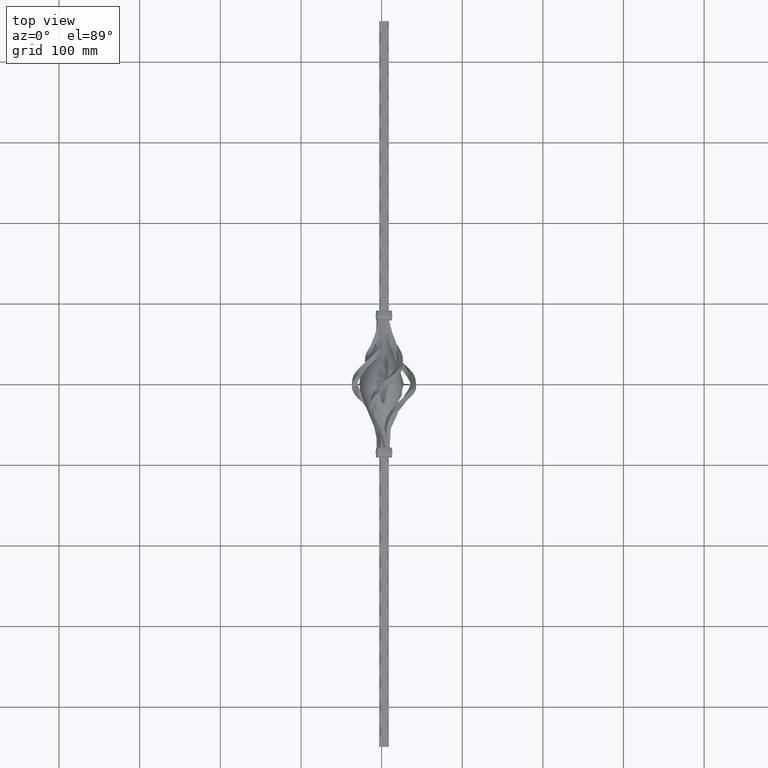
[diagram: clean part render]
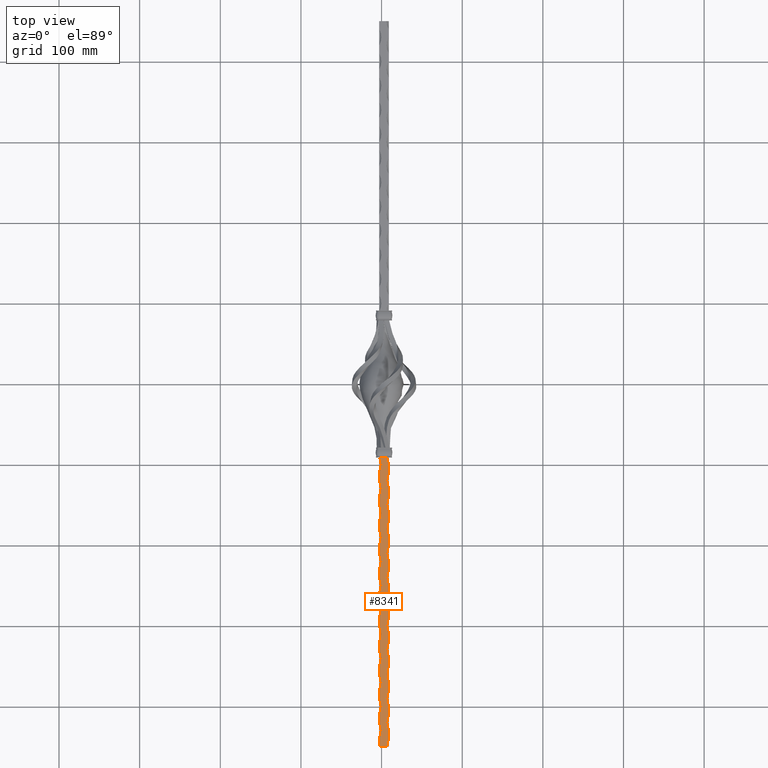
[diagram: same view with one face highlighted and labeled with its STEP entity id]
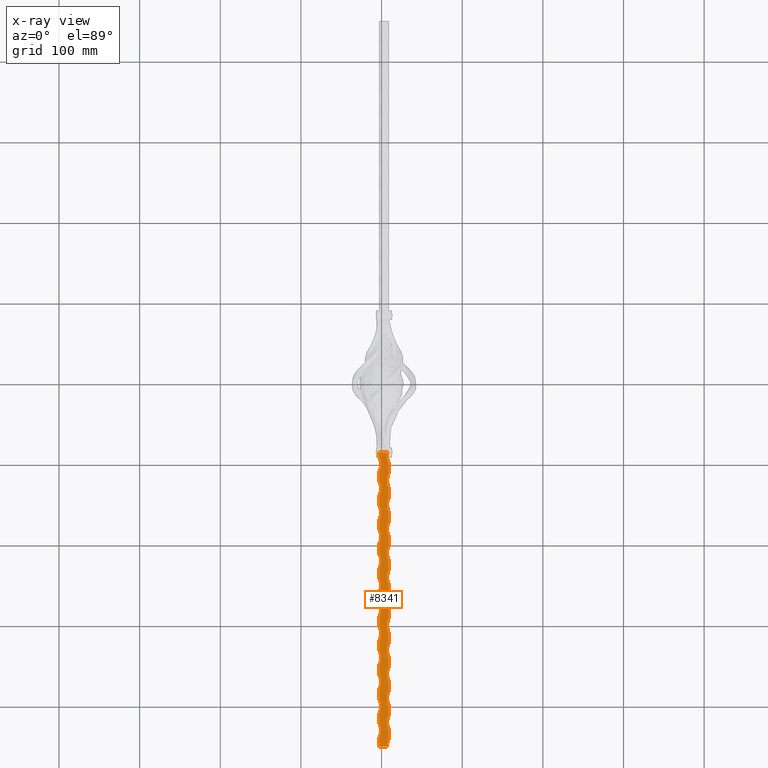
[diagram: x-ray of the same camera — body ghosted, the highlighted face saturated]
A machine part, top view. The second image highlights one B-rep face of the part: STEP entity #8341.
The next image is the same camera in x-ray: the body ghosted, the highlighted face saturated — about 0% of this face is hidden behind the body in this view.
In plain terms, the highlighted planar face has unit normal (-0, 0, -1).
Its self-contained STEP definition (entity closure, byte-faithful):
#14 = AXIS2_PLACEMENT_3D ( 'NONE', #9035, #19733, #19833 ) ;
#64 = LINE ( 'NONE', #15709, #23867 ) ;
#131 = EDGE_CURVE ( 'NONE', #20643, #11840, #64, .T. ) ;
#228 = DIRECTION ( 'NONE',  ( -0.000000000000000000, 1.000000000000000000, -0.000000000000000000 ) ) ;
#239 = LINE ( 'NONE', #26677, #28063 ) ;
#291 = EDGE_CURVE ( 'NONE', #23854, #10003, #25886, .T. ) ;
#319 = VECTOR ( 'NONE', #21261, 1000.000000000000000 ) ;
#437 = CARTESIAN_POINT ( 'NONE',  ( -21.74999999999998224, -220.0000000000000000, 15.00000000000006395 ) ) ;
#495 = ORIENTED_EDGE ( 'NONE', *, *, #13369, .F. ) ;
#576 = ORIENTED_EDGE ( 'NONE', *, *, #27334, .F. ) ;
#615 = CARTESIAN_POINT ( 'NONE',  ( 8.999999999999937828, -410.0000000000000000, 15.00000000000006395 ) ) ;
#617 = CARTESIAN_POINT ( 'NONE',  ( 8.999999999999937828, -450.0000000000000000, 15.00000000000006395 ) ) ;
#646 = LINE ( 'NONE', #26485, #6407 ) ;
#744 = ORIENTED_EDGE ( 'NONE', *, *, #13948, .F. ) ;
#918 = EDGE_CURVE ( 'NONE', #26754, #20355, #20737, .T. ) ;
#990 = CARTESIAN_POINT ( 'NONE',  ( 8.999999999999959144, -380.0000000000000000, 15.00000000000006395 ) ) ;
#1050 = CARTESIAN_POINT ( 'NONE',  ( 8.999999999999932498, -220.0000000000002842, 15.00000000000006395 ) ) ;
#1122 = AXIS2_PLACEMENT_3D ( 'NONE', #12576, #1832, #28130 ) ;
#1228 = VECTOR ( 'NONE', #14602, 1000.000000000000000 ) ;
#1318 = VERTEX_POINT ( 'NONE', #14841 ) ;
#1325 = LINE ( 'NONE', #19318, #3669 ) ;
#1350 = VECTOR ( 'NONE', #14709, 1000.000000000000000 ) ;
#1460 = AXIS2_PLACEMENT_3D ( 'NONE', #4754, #6942, #24335 ) ;
#1483 = CARTESIAN_POINT ( 'NONE',  ( -2.999999999999933831, -260.0000000000000000, 15.00000000000006395 ) ) ;
#1671 = CARTESIAN_POINT ( 'NONE',  ( -2.999999999999937383, -85.00000000000000000, 15.00000000000006395 ) ) ;
#1785 = DIRECTION ( 'NONE',  ( -0.000000000000000000, 1.000000000000000000, -0.000000000000000000 ) ) ;
#1821 = ORIENTED_EDGE ( 'NONE', *, *, #27429, .T. ) ;
#1832 = DIRECTION ( 'NONE',  ( -0.000000000000000000, -0.000000000000000000, 1.000000000000000000 ) ) ;
#2094 = CARTESIAN_POINT ( 'NONE',  ( -2.999999999999943601, -270.0000000000000000, 15.00000000000006395 ) ) ;
#2165 = ORIENTED_EDGE ( 'NONE', *, *, #22698, .T. ) ;
#2246 = LINE ( 'NONE', #19459, #22322 ) ;
#2253 = EDGE_CURVE ( 'NONE', #20780, #19716, #9838, .T. ) ;
#2258 = CARTESIAN_POINT ( 'NONE',  ( -2.999999999999937383, -450.0000000000000000, 15.00000000000006395 ) ) ;
#2310 = CARTESIAN_POINT ( 'NONE',  ( 9.000000000000083489, -199.9999999999999716, 15.00000000000006395 ) ) ;
#2382 = ORIENTED_EDGE ( 'NONE', *, *, #10682, .T. ) ;
#2400 = DIRECTION ( 'NONE',  ( 1.000000000000000000, 0.000000000000000000, 0.000000000000000000 ) ) ;
#2423 = EDGE_CURVE ( 'NONE', #23464, #16313, #8132, .T. ) ;
#2434 = LINE ( 'NONE', #16024, #10943 ) ;
#2494 = ORIENTED_EDGE ( 'NONE', *, *, #25105, .F. ) ;
#2570 = VERTEX_POINT ( 'NONE', #18660 ) ;
#2761 = ORIENTED_EDGE ( 'NONE', *, *, #5784, .T. ) ;
#2766 = DIRECTION ( 'NONE',  ( 0.000000000000000000, 0.000000000000000000, -1.000000000000000000 ) ) ;
#2826 = EDGE_CURVE ( 'NONE', #5525, #23854, #22394, .T. ) ;
#2951 = EDGE_CURVE ( 'NONE', #4098, #3237, #16586, .T. ) ;
#2960 = LINE ( 'NONE', #13233, #23720 ) ;
#3037 = DIRECTION ( 'NONE',  ( -1.000000000000000000, 0.000000000000000000, 0.000000000000000000 ) ) ;
#3056 = CIRCLE ( 'NONE', #18087, 21.25000000000003553 ) ;
#3127 = EDGE_CURVE ( 'NONE', #19716, #20972, #24112, .T. ) ;
#3167 = VERTEX_POINT ( 'NONE', #12539 ) ;
#3237 = VERTEX_POINT ( 'NONE', #16614 ) ;
#3363 = DIRECTION ( 'NONE',  ( 0.000000000000000000, 0.000000000000000000, -1.000000000000000000 ) ) ;
#3408 = CIRCLE ( 'NONE', #25399, 21.25000000000004263 ) ;
#3463 = AXIS2_PLACEMENT_3D ( 'NONE', #6736, #15527, #4440 ) ;
#3668 = DIRECTION ( 'NONE',  ( 0.000000000000000000, 0.000000000000000000, -1.000000000000000000 ) ) ;
#3669 = VECTOR ( 'NONE', #1785, 1000.000000000000000 ) ;
#3682 = CARTESIAN_POINT ( 'NONE',  ( 9.000000000000042633, -260.0000000000000000, 15.00000000000006395 ) ) ;
#3781 = ORIENTED_EDGE ( 'NONE', *, *, #14094, .T. ) ;
#3932 = EDGE_CURVE ( 'NONE', #9886, #19184, #22037, .T. ) ;
#3963 = DIRECTION ( 'NONE',  ( -0.000000000000000000, -0.000000000000000000, 1.000000000000000000 ) ) ;
#4024 = LINE ( 'NONE', #11625, #13230 ) ;
#4098 = VERTEX_POINT ( 'NONE', #16978 ) ;
#4104 = CIRCLE ( 'NONE', #6477, 21.25000000000003553 ) ;
#4160 = AXIS2_PLACEMENT_3D ( 'NONE', #4169, #19428, #17074 ) ;
#4169 = CARTESIAN_POINT ( 'NONE',  ( 27.75000000000016342, -149.9999999999999716, 15.00000000000006395 ) ) ;
#4204 = AXIS2_PLACEMENT_3D ( 'NONE', #6569, #8756, #23966 ) ;
#4212 = ORIENTED_EDGE ( 'NONE', *, *, #12080, .F. ) ;
#4282 = CARTESIAN_POINT ( 'NONE',  ( 8.999999999999932498, -430.0000000000000000, 15.00000000000006395 ) ) ;
#4304 = EDGE_CURVE ( 'NONE', #13061, #23464, #2960, .T. ) ;
#4342 = LINE ( 'NONE', #26197, #13845 ) ;
#4352 = AXIS2_PLACEMENT_3D ( 'NONE', #8531, #28086, #23555 ) ;
#4440 = DIRECTION ( 'NONE',  ( -1.000000000000000000, 0.000000000000000000, 0.000000000000000000 ) ) ;
#4532 = DIRECTION ( 'NONE',  ( -0.000000000000000000, 1.000000000000000000, -0.000000000000000000 ) ) ;
#4709 = CARTESIAN_POINT ( 'NONE',  ( -2.999999999999933387, -230.0000000000000000, 15.00000000000006395 ) ) ;
#4754 = CARTESIAN_POINT ( 'NONE',  ( 27.75000000000020606, -90.00000000000002842, 15.00000000000006395 ) ) ;
#4761 = ORIENTED_EDGE ( 'NONE', *, *, #19324, .T. ) ;
#5151 = DIRECTION ( 'NONE',  ( -0.000000000000000000, 1.000000000000000000, -0.000000000000000000 ) ) ;
#5177 = ORIENTED_EDGE ( 'NONE', *, *, #28012, .F. ) ;
#5186 = CARTESIAN_POINT ( 'NONE',  ( 7.096610447677290878, -85.00000000000000000, 15.00000000000006395 ) ) ;
#5229 = DIRECTION ( 'NONE',  ( -0.000000000000000000, 1.000000000000000000, -0.000000000000000000 ) ) ;
#5230 = VERTEX_POINT ( 'NONE', #11984 ) ;
#5525 = VERTEX_POINT ( 'NONE', #11396 ) ;
#5550 = CARTESIAN_POINT ( 'NONE',  ( 27.74999999999997513, -420.0000000000000000, 15.00000000000006395 ) ) ;
#5573 = DIRECTION ( 'NONE',  ( -1.000000000000000000, -1.306144734853123226E-14, 0.000000000000000000 ) ) ;
#5577 = EDGE_CURVE ( 'NONE', #18209, #8514, #239, .T. ) ;
#5629 = CIRCLE ( 'NONE', #4204, 21.25000000000004619 ) ;
#5648 = EDGE_CURVE ( 'NONE', #13620, #20780, #26381, .T. ) ;
#5697 = DIRECTION ( 'NONE',  ( 1.000000000000000000, 0.000000000000000000, 0.000000000000000000 ) ) ;
#5712 = EDGE_CURVE ( 'NONE', #16316, #13620, #15814, .T. ) ;
#5730 = VECTOR ( 'NONE', #22854, 1000.000000000000000 ) ;
#5784 = EDGE_CURVE ( 'NONE', #12037, #11864, #8028, .T. ) ;
#5881 = EDGE_CURVE ( 'NONE', #11004, #6293, #5976, .T. ) ;
#5897 = EDGE_CURVE ( 'NONE', #8514, #23314, #8353, .T. ) ;
#5963 = DIRECTION ( 'NONE',  ( -1.000000000000000000, 0.000000000000000000, 0.000000000000000000 ) ) ;
#5976 = LINE ( 'NONE', #23832, #11751 ) ;
#6101 = LINE ( 'NONE', #16997, #16261 ) ;
#6183 = ORIENTED_EDGE ( 'NONE', *, *, #27831, .F. ) ;
#6293 = VERTEX_POINT ( 'NONE', #7518 ) ;
#6297 = CARTESIAN_POINT ( 'NONE',  ( -2.999999999999935163, -320.0000000000000000, 15.00000000000006395 ) ) ;
#6327 = AXIS2_PLACEMENT_3D ( 'NONE', #7139, #9250, #13429 ) ;
#6407 = VECTOR ( 'NONE', #15818, 1000.000000000000000 ) ;
#6477 = AXIS2_PLACEMENT_3D ( 'NONE', #9524, #2766, #3037 ) ;
#6534 = DIRECTION ( 'NONE',  ( -1.000000000000000000, 0.000000000000000000, 0.000000000000000000 ) ) ;
#6569 = CARTESIAN_POINT ( 'NONE',  ( -21.74999999999997868, -159.9999999999999716, 15.00000000000006395 ) ) ;
#6683 = VERTEX_POINT ( 'NONE', #13131 ) ;
#6736 = CARTESIAN_POINT ( 'NONE',  ( -21.74999999999998224, -310.0000000000000000, 15.00000000000006395 ) ) ;
#6942 = DIRECTION ( 'NONE',  ( 0.000000000000000000, 0.000000000000000000, -1.000000000000000000 ) ) ;
#6982 = DIRECTION ( 'NONE',  ( -0.000000000000000000, 1.000000000000000000, -0.000000000000000000 ) ) ;
#7077 = CIRCLE ( 'NONE', #24558, 21.25000000000004263 ) ;
#7139 = CARTESIAN_POINT ( 'NONE',  ( 27.75000000000012079, -210.0000000000000000, 15.00000000000006395 ) ) ;
#7257 = LINE ( 'NONE', #617, #27314 ) ;
#7356 = ORIENTED_EDGE ( 'NONE', *, *, #25806, .T. ) ;
#7357 = EDGE_CURVE ( 'NONE', #11840, #4098, #18468, .T. ) ;
#7383 = VERTEX_POINT ( 'NONE', #16964 ) ;
#7405 = DIRECTION ( 'NONE',  ( -1.000000000000000000, 0.000000000000000000, 0.000000000000000000 ) ) ;
#7425 = AXIS2_PLACEMENT_3D ( 'NONE', #25809, #3963, #23372 ) ;
#7466 = DIRECTION ( 'NONE',  ( -1.000000000000000000, -7.836868409118738407E-15, 0.000000000000000000 ) ) ;
#7485 = DIRECTION ( 'NONE',  ( -0.000000000000000000, 1.000000000000000000, -0.000000000000000000 ) ) ;
#7518 = CARTESIAN_POINT ( 'NONE',  ( 8.999999999999932498, -250.0000000000002274, 15.00000000000006395 ) ) ;
#7554 = DIRECTION ( 'NONE',  ( -1.000000000000000000, 7.836868409118738407E-15, 0.000000000000000000 ) ) ;
#7570 = VERTEX_POINT ( 'NONE', #16546 ) ;
#7596 = VECTOR ( 'NONE', #7485, 1000.000000000000000 ) ;
#7699 = ORIENTED_EDGE ( 'NONE', *, *, #5897, .F. ) ;
#7745 = DIRECTION ( 'NONE',  ( 0.000000000000000000, 0.000000000000000000, -1.000000000000000000 ) ) ;
#7798 = DIRECTION ( 'NONE',  ( 0.000000000000000000, 0.000000000000000000, -1.000000000000000000 ) ) ;
#7836 = ORIENTED_EDGE ( 'NONE', *, *, #2253, .T. ) ;
#7961 = CARTESIAN_POINT ( 'NONE',  ( 27.75000000000001776, -360.0000000000000000, 15.00000000000006395 ) ) ;
#7995 = CARTESIAN_POINT ( 'NONE',  ( 8.999999999999937828, -450.0000000000000000, 15.00000000000006395 ) ) ;
#8028 = CIRCLE ( 'NONE', #4352, 21.25000000000003553 ) ;
#8132 = CIRCLE ( 'NONE', #22592, 21.25000000000003553 ) ;
#8224 = ORIENTED_EDGE ( 'NONE', *, *, #918, .F. ) ;
#8341 = ADVANCED_FACE ( 'NONE', ( #22481 ), #26187, .F. ) ;
#8353 = CIRCLE ( 'NONE', #9486, 21.25000000000003908 ) ;
#8385 = ORIENTED_EDGE ( 'NONE', *, *, #11162, .T. ) ;
#8514 = VERTEX_POINT ( 'NONE', #22968 ) ;
#8531 = CARTESIAN_POINT ( 'NONE',  ( 27.75000000000018474, -120.0000000000000000, 15.00000000000006395 ) ) ;
#8610 = ORIENTED_EDGE ( 'NONE', *, *, #5577, .F. ) ;
#8674 = CARTESIAN_POINT ( 'NONE',  ( 8.999999999999932498, -130.0000000000003979, 15.00000000000006395 ) ) ;
#8715 = DIRECTION ( 'NONE',  ( -0.000000000000000000, -0.000000000000000000, 1.000000000000000000 ) ) ;
#8718 = CARTESIAN_POINT ( 'NONE',  ( -2.999999999999937383, -450.0000000000000000, 15.00000000000006395 ) ) ;
#8756 = DIRECTION ( 'NONE',  ( -0.000000000000000000, -0.000000000000000000, 1.000000000000000000 ) ) ;
#8776 = AXIS2_PLACEMENT_3D ( 'NONE', #27504, #3363, #7554 ) ;
#8909 = CARTESIAN_POINT ( 'NONE',  ( 9.000000000000063949, -229.9999999999999716, 15.00000000000006395 ) ) ;
#8941 = AXIS2_PLACEMENT_3D ( 'NONE', #21892, #11143, #11050 ) ;
#8993 = ORIENTED_EDGE ( 'NONE', *, *, #10247, .F. ) ;
#9035 = CARTESIAN_POINT ( 'NONE',  ( -21.74999999999997868, -130.0000000000000000, 15.00000000000006395 ) ) ;
#9084 = CARTESIAN_POINT ( 'NONE',  ( 27.75000000000014211, -180.0000000000000000, 15.00000000000006395 ) ) ;
#9151 = CARTESIAN_POINT ( 'NONE',  ( -2.999999999999943601, -390.0000000000000000, 15.00000000000006395 ) ) ;
#9202 = ORIENTED_EDGE ( 'NONE', *, *, #15316, .F. ) ;
#9242 = ORIENTED_EDGE ( 'NONE', *, *, #18843, .F. ) ;
#9250 = DIRECTION ( 'NONE',  ( 0.000000000000000000, 0.000000000000000000, -1.000000000000000000 ) ) ;
#9328 = DIRECTION ( 'NONE',  ( -0.000000000000000000, 1.000000000000000000, -0.000000000000000000 ) ) ;
#9357 = AXIS2_PLACEMENT_3D ( 'NONE', #22413, #11756, #7466 ) ;
#9361 = EDGE_CURVE ( 'NONE', #16313, #5230, #14929, .T. ) ;
#9449 = EDGE_CURVE ( 'NONE', #20494, #12390, #22430, .T. ) ;
#9486 = AXIS2_PLACEMENT_3D ( 'NONE', #26098, #15248, #6534 ) ;
#9489 = AXIS2_PLACEMENT_3D ( 'NONE', #5550, #7745, #22956 ) ;
#9524 = CARTESIAN_POINT ( 'NONE',  ( 27.75000000000003908, -329.9999999999999432, 15.00000000000006395 ) ) ;
#9731 = DIRECTION ( 'NONE',  ( -0.000000000000000000, -0.000000000000000000, 1.000000000000000000 ) ) ;
#9792 = VERTEX_POINT ( 'NONE', #12526 ) ;
#9838 = CIRCLE ( 'NONE', #20567, 21.25000000000003553 ) ;
#9886 = VERTEX_POINT ( 'NONE', #23330 ) ;
#9986 = EDGE_CURVE ( 'NONE', #12440, #13061, #26155, .T. ) ;
#9996 = ORIENTED_EDGE ( 'NONE', *, *, #9449, .F. ) ;
#10003 = VERTEX_POINT ( 'NONE', #615 ) ;
#10101 = ORIENTED_EDGE ( 'NONE', *, *, #17255, .F. ) ;
#10247 = EDGE_CURVE ( 'NONE', #7570, #3167, #6101, .T. ) ;
#10264 = VERTEX_POINT ( 'NONE', #2094 ) ;
#10362 = CARTESIAN_POINT ( 'NONE',  ( -2.999999999999937383, -450.0000000000000000, 15.00000000000006395 ) ) ;
#10524 = DIRECTION ( 'NONE',  ( -1.000000000000000000, 0.000000000000000000, 0.000000000000000000 ) ) ;
#10610 = CARTESIAN_POINT ( 'NONE',  ( 8.999999999999937828, -450.0000000000000000, 15.00000000000006395 ) ) ;
#10682 = EDGE_CURVE ( 'NONE', #19184, #15375, #1325, .T. ) ;
#10780 = EDGE_CURVE ( 'NONE', #11063, #5525, #26126, .T. ) ;
#10802 = DIRECTION ( 'NONE',  ( -0.000000000000000000, 1.000000000000000000, -0.000000000000000000 ) ) ;
#10912 = DIRECTION ( 'NONE',  ( -0.000000000000000000, 1.000000000000000000, -0.000000000000000000 ) ) ;
#10943 = VECTOR ( 'NONE', #9328, 1000.000000000000000 ) ;
#11004 = VERTEX_POINT ( 'NONE', #3682 ) ;
#11045 = DIRECTION ( 'NONE',  ( -0.000000000000000000, 1.000000000000000000, -0.000000000000000000 ) ) ;
#11050 = DIRECTION ( 'NONE',  ( -1.000000000000000000, 0.000000000000000000, 0.000000000000000000 ) ) ;
#11063 = VERTEX_POINT ( 'NONE', #16517 ) ;
#11143 = DIRECTION ( 'NONE',  ( -0.000000000000000000, -0.000000000000000000, 1.000000000000000000 ) ) ;
#11162 = EDGE_CURVE ( 'NONE', #5230, #25574, #12215, .T. ) ;
#11167 = VERTEX_POINT ( 'NONE', #21660 ) ;
#11396 = CARTESIAN_POINT ( 'NONE',  ( 8.999999999999937828, -439.9999999999999432, 15.00000000000006395 ) ) ;
#11440 = ORIENTED_EDGE ( 'NONE', *, *, #9361, .T. ) ;
#11443 = EDGE_CURVE ( 'NONE', #25574, #12037, #23066, .T. ) ;
#11602 = ORIENTED_EDGE ( 'NONE', *, *, #20409, .F. ) ;
#11625 = CARTESIAN_POINT ( 'NONE',  ( -2.999999999999937383, -450.0000000000000000, 15.00000000000006395 ) ) ;
#11680 = VERTEX_POINT ( 'NONE', #4709 ) ;
#11751 = VECTOR ( 'NONE', #10802, 1000.000000000000000 ) ;
#11756 = DIRECTION ( 'NONE',  ( 0.000000000000000000, 0.000000000000000000, -1.000000000000000000 ) ) ;
#11774 = EDGE_CURVE ( 'NONE', #16962, #18596, #7077, .T. ) ;
#11802 = VECTOR ( 'NONE', #5697, 1000.000000000000000 ) ;
#11818 = CIRCLE ( 'NONE', #9357, 21.25000000000003553 ) ;
#11819 = CARTESIAN_POINT ( 'NONE',  ( -2.999999999999937383, -440.0000000000000000, 15.00000000000006395 ) ) ;
#11840 = VERTEX_POINT ( 'NONE', #11819 ) ;
#11846 = AXIS2_PLACEMENT_3D ( 'NONE', #20936, #27482, #22849 ) ;
#11864 = VERTEX_POINT ( 'NONE', #12112 ) ;
#11984 = CARTESIAN_POINT ( 'NONE',  ( 8.999999999999932498, -160.0000000000003411, 15.00000000000006395 ) ) ;
#12021 = CARTESIAN_POINT ( 'NONE',  ( -2.999999999999937383, -450.0000000000000000, 15.00000000000006395 ) ) ;
#12037 = VERTEX_POINT ( 'NONE', #8674 ) ;
#12080 = EDGE_CURVE ( 'NONE', #22591, #2570, #22349, .T. ) ;
#12112 = CARTESIAN_POINT ( 'NONE',  ( 9.000000000000147438, -109.9999999999999858, 15.00000000000006395 ) ) ;
#12115 = DIRECTION ( 'NONE',  ( -0.000000000000000000, 1.000000000000000000, -0.000000000000000000 ) ) ;
#12165 = CARTESIAN_POINT ( 'NONE',  ( 8.999999999999932498, -280.0000000000002274, 15.00000000000006395 ) ) ;
#12215 = CIRCLE ( 'NONE', #4160, 21.25000000000003553 ) ;
#12259 = CARTESIAN_POINT ( 'NONE',  ( -2.999999999999937383, -450.0000000000000000, 15.00000000000006395 ) ) ;
#12280 = DIRECTION ( 'NONE',  ( -0.000000000000000000, 1.000000000000000000, -0.000000000000000000 ) ) ;
#12390 = VERTEX_POINT ( 'NONE', #26874 ) ;
#12398 = EDGE_CURVE ( 'NONE', #25679, #9886, #20271, .T. ) ;
#12440 = VERTEX_POINT ( 'NONE', #1050 ) ;
#12526 = CARTESIAN_POINT ( 'NONE',  ( -2.999999999999943601, -90.00000000000001421, 15.00000000000006395 ) ) ;
#12539 = CARTESIAN_POINT ( 'NONE',  ( -2.999999999999932498, -200.0000000000000000, 15.00000000000006395 ) ) ;
#12576 = CARTESIAN_POINT ( 'NONE',  ( -21.74999999999998579, -400.0000000000000000, 15.00000000000006395 ) ) ;
#13019 = EDGE_CURVE ( 'NONE', #20643, #11063, #2246, .T. ) ;
#13061 = VERTEX_POINT ( 'NONE', #2310 ) ;
#13131 = CARTESIAN_POINT ( 'NONE',  ( -2.999999999999943601, -149.9999999999999716, 15.00000000000006395 ) ) ;
#13200 = DIRECTION ( 'NONE',  ( -1.000000000000000000, -0.000000000000000000, 0.000000000000000000 ) ) ;
#13230 = VECTOR ( 'NONE', #6982, 1000.000000000000000 ) ;
#13233 = CARTESIAN_POINT ( 'NONE',  ( 8.999999999999937828, -450.0000000000000000, 15.00000000000006395 ) ) ;
#13369 = EDGE_CURVE ( 'NONE', #11680, #7570, #26726, .T. ) ;
#13376 = ORIENTED_EDGE ( 'NONE', *, *, #2423, .T. ) ;
#13429 = DIRECTION ( 'NONE',  ( -1.000000000000000000, 0.000000000000000000, 0.000000000000000000 ) ) ;
#13550 = CIRCLE ( 'NONE', #7425, 21.25000000000004619 ) ;
#13620 = VERTEX_POINT ( 'NONE', #990 ) ;
#13845 = VECTOR ( 'NONE', #10912, 1000.000000000000000 ) ;
#13948 = EDGE_CURVE ( 'NONE', #12390, #6683, #5629, .T. ) ;
#14055 = CARTESIAN_POINT ( 'NONE',  ( -2.999999999999943601, -300.0000000000000000, 15.00000000000006395 ) ) ;
#14065 = EDGE_CURVE ( 'NONE', #26960, #21177, #23319, .T. ) ;
#14094 = EDGE_CURVE ( 'NONE', #7383, #23564, #17485, .T. ) ;
#14223 = CARTESIAN_POINT ( 'NONE',  ( -21.74999999999998224, -190.0000000000000000, 15.00000000000006395 ) ) ;
#14492 = CIRCLE ( 'NONE', #8941, 21.25000000000004263 ) ;
#14501 = VECTOR ( 'NONE', #5229, 1000.000000000000000 ) ;
#14602 = DIRECTION ( 'NONE',  ( -0.000000000000000000, 1.000000000000000000, -0.000000000000000000 ) ) ;
#14665 = ORIENTED_EDGE ( 'NONE', *, *, #11443, .T. ) ;
#14709 = DIRECTION ( 'NONE',  ( -0.000000000000000000, 1.000000000000000000, -0.000000000000000000 ) ) ;
#14732 = VECTOR ( 'NONE', #27440, 1000.000000000000000 ) ;
#14768 = CARTESIAN_POINT ( 'NONE',  ( 8.999999999999980460, -350.0000000000000000, 15.00000000000006395 ) ) ;
#14838 = LINE ( 'NONE', #25208, #16188 ) ;
#14841 = CARTESIAN_POINT ( 'NONE',  ( -2.999999999999930722, -110.0000000000000426, 15.00000000000006395 ) ) ;
#14929 = LINE ( 'NONE', #7995, #23118 ) ;
#14958 = ORIENTED_EDGE ( 'NONE', *, *, #7357, .F. ) ;
#14961 = CARTESIAN_POINT ( 'NONE',  ( -21.74999999999998579, -430.0000000000000000, 15.00000000000006395 ) ) ;
#15097 = ORIENTED_EDGE ( 'NONE', *, *, #4304, .T. ) ;
#15103 = CARTESIAN_POINT ( 'NONE',  ( -2.999999999999943601, -240.0000000000000000, 15.00000000000006395 ) ) ;
#15141 = CARTESIAN_POINT ( 'NONE',  ( -2.999999999999943601, -329.9999999999999432, 15.00000000000006395 ) ) ;
#15157 = DIRECTION ( 'NONE',  ( -0.000000000000000000, 0.000000000000000000, -1.000000000000000000 ) ) ;
#15235 = DIRECTION ( 'NONE',  ( 0.000000000000000000, 0.000000000000000000, -1.000000000000000000 ) ) ;
#15248 = DIRECTION ( 'NONE',  ( -0.000000000000000000, -0.000000000000000000, 1.000000000000000000 ) ) ;
#15316 = EDGE_CURVE ( 'NONE', #3237, #22591, #20164, .T. ) ;
#15326 = DIRECTION ( 'NONE',  ( -1.000000000000000000, 0.000000000000000000, 0.000000000000000000 ) ) ;
#15340 = CARTESIAN_POINT ( 'NONE',  ( 8.999999999999932498, -190.0000000000003126, 15.00000000000006395 ) ) ;
#15375 = VERTEX_POINT ( 'NONE', #12165 ) ;
#15520 = DIRECTION ( 'NONE',  ( -0.000000000000000000, 1.000000000000000000, -0.000000000000000000 ) ) ;
#15523 = EDGE_CURVE ( 'NONE', #11864, #7383, #7257, .T. ) ;
#15527 = DIRECTION ( 'NONE',  ( -0.000000000000000000, -0.000000000000000000, 1.000000000000000000 ) ) ;
#15709 = CARTESIAN_POINT ( 'NONE',  ( -2.999999999999937383, -450.0000000000000000, 15.00000000000006395 ) ) ;
#15814 = CIRCLE ( 'NONE', #15816, 21.25000000000003553 ) ;
#15816 = AXIS2_PLACEMENT_3D ( 'NONE', #25441, #3668, #20985 ) ;
#15818 = DIRECTION ( 'NONE',  ( -0.000000000000000000, 1.000000000000000000, -0.000000000000000000 ) ) ;
#16024 = CARTESIAN_POINT ( 'NONE',  ( -2.999999999999937383, -450.0000000000000000, 15.00000000000006395 ) ) ;
#16125 = CARTESIAN_POINT ( 'NONE',  ( 8.999999999999937828, -450.0000000000000000, 15.00000000000006395 ) ) ;
#16188 = VECTOR ( 'NONE', #12115, 1000.000000000000000 ) ;
#16261 = VECTOR ( 'NONE', #25741, 1000.000000000000000 ) ;
#16276 = CARTESIAN_POINT ( 'NONE',  ( -2.999999999999943601, -360.0000000000000000, 15.00000000000006395 ) ) ;
#16300 = CARTESIAN_POINT ( 'NONE',  ( 8.999999999999937828, -450.0000000000000000, 15.00000000000006395 ) ) ;
#16313 = VERTEX_POINT ( 'NONE', #23559 ) ;
#16316 = VERTEX_POINT ( 'NONE', #16883 ) ;
#16517 = CARTESIAN_POINT ( 'NONE',  ( 6.499999999999939604, -450.0000000000000000, 15.00000000000006395 ) ) ;
#16543 = ORIENTED_EDGE ( 'NONE', *, *, #27049, .F. ) ;
#16546 = CARTESIAN_POINT ( 'NONE',  ( -2.999999999999943601, -210.0000000000000000, 15.00000000000006395 ) ) ;
#16586 = LINE ( 'NONE', #12021, #18283 ) ;
#16614 = CARTESIAN_POINT ( 'NONE',  ( -2.999999999999936939, -410.0000000000000568, 15.00000000000006395 ) ) ;
#16784 = CARTESIAN_POINT ( 'NONE',  ( 9.000000000000021316, -290.0000000000000000, 15.00000000000006395 ) ) ;
#16841 = ORIENTED_EDGE ( 'NONE', *, *, #23011, .F. ) ;
#16883 = CARTESIAN_POINT ( 'NONE',  ( 8.999999999999932498, -400.0000000000000568, 15.00000000000006395 ) ) ;
#16904 = VECTOR ( 'NONE', #11045, 1000.000000000000000 ) ;
#16962 = VERTEX_POINT ( 'NONE', #1483 ) ;
#16964 = CARTESIAN_POINT ( 'NONE',  ( 9.000000000000166978, -100.0000000000000284, 15.00000000000006395 ) ) ;
#16978 = CARTESIAN_POINT ( 'NONE',  ( -2.999999999999943601, -420.0000000000000000, 15.00000000000006395 ) ) ;
#16997 = CARTESIAN_POINT ( 'NONE',  ( -2.999999999999937383, -450.0000000000000000, 15.00000000000006395 ) ) ;
#17005 = ORIENTED_EDGE ( 'NONE', *, *, #2826, .T. ) ;
#17074 = DIRECTION ( 'NONE',  ( -1.000000000000000000, 0.000000000000000000, 0.000000000000000000 ) ) ;
#17095 = LINE ( 'NONE', #18484, #7596 ) ;
#17216 = ORIENTED_EDGE ( 'NONE', *, *, #291, .T. ) ;
#17255 = EDGE_CURVE ( 'NONE', #21177, #1318, #27928, .T. ) ;
#17344 = DIRECTION ( 'NONE',  ( -0.000000000000000000, 1.000000000000000000, -0.000000000000000000 ) ) ;
#17398 = DIRECTION ( 'NONE',  ( -0.000000000000000000, -0.000000000000000000, 1.000000000000000000 ) ) ;
#17485 = CIRCLE ( 'NONE', #1460, 21.25000000000003553 ) ;
#17563 = ORIENTED_EDGE ( 'NONE', *, *, #23254, .T. ) ;
#17781 = DIRECTION ( 'NONE',  ( -1.000000000000000000, 0.000000000000000000, 0.000000000000000000 ) ) ;
#17916 = VECTOR ( 'NONE', #19681, 1000.000000000000000 ) ;
#18067 = DIRECTION ( 'NONE',  ( 0.000000000000000000, 0.000000000000000000, -1.000000000000000000 ) ) ;
#18082 = ORIENTED_EDGE ( 'NONE', *, *, #14065, .F. ) ;
#18087 = AXIS2_PLACEMENT_3D ( 'NONE', #19591, #15235, #15326 ) ;
#18209 = VERTEX_POINT ( 'NONE', #16276 ) ;
#18283 = VECTOR ( 'NONE', #15520, 1000.000000000000000 ) ;
#18468 = CIRCLE ( 'NONE', #20846, 21.25000000000003908 ) ;
#18484 = CARTESIAN_POINT ( 'NONE',  ( -2.999999999999937383, -450.0000000000000000, 15.00000000000006395 ) ) ;
#18596 = VERTEX_POINT ( 'NONE', #15103 ) ;
#18660 = CARTESIAN_POINT ( 'NONE',  ( -2.999999999999936051, -380.0000000000000000, 15.00000000000006395 ) ) ;
#18797 = ORIENTED_EDGE ( 'NONE', *, *, #3932, .T. ) ;
#18843 = EDGE_CURVE ( 'NONE', #6683, #26960, #2434, .T. ) ;
#18929 = ORIENTED_EDGE ( 'NONE', *, *, #15523, .T. ) ;
#19184 = VERTEX_POINT ( 'NONE', #16784 ) ;
#19278 = VECTOR ( 'NONE', #17344, 1000.000000000000000 ) ;
#19318 = CARTESIAN_POINT ( 'NONE',  ( 8.999999999999937828, -450.0000000000000000, 15.00000000000006395 ) ) ;
#19324 = EDGE_CURVE ( 'NONE', #15375, #11004, #11818, .T. ) ;
#19428 = DIRECTION ( 'NONE',  ( 0.000000000000000000, 0.000000000000000000, -1.000000000000000000 ) ) ;
#19459 = CARTESIAN_POINT ( 'NONE',  ( -2.999999999999937383, -450.0000000000000000, 15.00000000000006395 ) ) ;
#19591 = CARTESIAN_POINT ( 'NONE',  ( 27.75000000000009948, -240.0000000000000000, 15.00000000000006395 ) ) ;
#19681 = DIRECTION ( 'NONE',  ( -0.000000000000000000, 1.000000000000000000, -0.000000000000000000 ) ) ;
#19716 = VERTEX_POINT ( 'NONE', #14768 ) ;
#19733 = DIRECTION ( 'NONE',  ( -0.000000000000000000, -0.000000000000000000, 1.000000000000000000 ) ) ;
#19796 = CARTESIAN_POINT ( 'NONE',  ( 8.999999999999932498, -370.0000000000000568, 15.00000000000006395 ) ) ;
#19833 = DIRECTION ( 'NONE',  ( -1.000000000000000000, 0.000000000000000000, 0.000000000000000000 ) ) ;
#19960 = LINE ( 'NONE', #23751, #19278 ) ;
#20079 = ORIENTED_EDGE ( 'NONE', *, *, #12398, .T. ) ;
#20164 = CIRCLE ( 'NONE', #1122, 21.25000000000003908 ) ;
#20271 = LINE ( 'NONE', #16125, #14501 ) ;
#20345 = CARTESIAN_POINT ( 'NONE',  ( -21.74999999999998224, -250.0000000000000000, 15.00000000000006395 ) ) ;
#20355 = VERTEX_POINT ( 'NONE', #14055 ) ;
#20409 = EDGE_CURVE ( 'NONE', #18596, #11680, #17095, .T. ) ;
#20490 = EDGE_LOOP ( 'NONE', ( #23207, #26959, #17005, #17216, #1821, #24472, #24876, #7836, #27316, #2165, #20079, #18797, #2382, #4761, #27791, #17563, #7356, #25163, #15097, #13376, #11440, #8385, #14665, #2761, #18929, #3781, #16543, #6183, #22315, #10101, #18082, #9242, #744, #9996, #16841, #8993, #495, #11602, #21011, #2494, #5177, #25956, #8224, #576, #7699, #8610, #25382, #4212, #9202, #24906, #14958, #21301 ) ) ;
#20494 = VERTEX_POINT ( 'NONE', #27244 ) ;
#20551 = EDGE_CURVE ( 'NONE', #20355, #11167, #24927, .T. ) ;
#20567 = AXIS2_PLACEMENT_3D ( 'NONE', #7961, #27422, #5573 ) ;
#20604 = CARTESIAN_POINT ( 'NONE',  ( 27.74999999999997513, -449.9999999999999432, 15.00000000000006395 ) ) ;
#20643 = VERTEX_POINT ( 'NONE', #21270 ) ;
#20737 = CIRCLE ( 'NONE', #3463, 21.25000000000004263 ) ;
#20741 = CARTESIAN_POINT ( 'NONE',  ( 8.999999999999937828, -450.0000000000000000, 15.00000000000006395 ) ) ;
#20780 = VERTEX_POINT ( 'NONE', #19796 ) ;
#20846 = AXIS2_PLACEMENT_3D ( 'NONE', #14961, #8715, #10524 ) ;
#20936 = CARTESIAN_POINT ( 'NONE',  ( -21.74999999999998579, -370.0000000000000000, 15.00000000000006395 ) ) ;
#20953 = CARTESIAN_POINT ( 'NONE',  ( -2.999999999999943601, -119.9999999999999858, 15.00000000000006395 ) ) ;
#20960 = LINE ( 'NONE', #22907, #11802 ) ;
#20972 = VERTEX_POINT ( 'NONE', #24307 ) ;
#20985 = DIRECTION ( 'NONE',  ( -1.000000000000000000, -1.306144734853123226E-14, 0.000000000000000000 ) ) ;
#21011 = ORIENTED_EDGE ( 'NONE', *, *, #11774, .F. ) ;
#21094 = CARTESIAN_POINT ( 'NONE',  ( 9.000000000000001776, -319.9999999999999432, 15.00000000000006395 ) ) ;
#21127 = VERTEX_POINT ( 'NONE', #1671 ) ;
#21177 = VERTEX_POINT ( 'NONE', #20953 ) ;
#21261 = DIRECTION ( 'NONE',  ( -0.000000000000000000, 1.000000000000000000, -0.000000000000000000 ) ) ;
#21270 = CARTESIAN_POINT ( 'NONE',  ( -2.999999999999937383, -450.0000000000000000, 15.00000000000006395 ) ) ;
#21301 = ORIENTED_EDGE ( 'NONE', *, *, #131, .F. ) ;
#21660 = CARTESIAN_POINT ( 'NONE',  ( -2.999999999999934275, -290.0000000000000568, 15.00000000000006395 ) ) ;
#21892 = CARTESIAN_POINT ( 'NONE',  ( -21.74999999999998224, -280.0000000000000000, 15.00000000000006395 ) ) ;
#22037 = CIRCLE ( 'NONE', #8776, 21.25000000000003553 ) ;
#22163 = VECTOR ( 'NONE', #4532, 1000.000000000000000 ) ;
#22315 = ORIENTED_EDGE ( 'NONE', *, *, #25272, .F. ) ;
#22322 = VECTOR ( 'NONE', #2400, 1000.000000000000000 ) ;
#22341 = CARTESIAN_POINT ( 'NONE',  ( -2.999999999999931610, -140.0000000000000000, 15.00000000000006395 ) ) ;
#22349 = LINE ( 'NONE', #23976, #16904 ) ;
#22370 = CIRCLE ( 'NONE', #11846, 21.25000000000003908 ) ;
#22394 = LINE ( 'NONE', #20741, #5730 ) ;
#22413 = CARTESIAN_POINT ( 'NONE',  ( 27.75000000000008171, -270.0000000000000000, 15.00000000000006395 ) ) ;
#22430 = LINE ( 'NONE', #10362, #1350 ) ;
#22481 = FACE_OUTER_BOUND ( 'NONE', #20490, .T. ) ;
#22591 = VERTEX_POINT ( 'NONE', #9151 ) ;
#22592 = AXIS2_PLACEMENT_3D ( 'NONE', #9084, #18067, #17781 ) ;
#22698 = EDGE_CURVE ( 'NONE', #20972, #25679, #4104, .T. ) ;
#22849 = DIRECTION ( 'NONE',  ( -1.000000000000000000, 0.000000000000000000, 0.000000000000000000 ) ) ;
#22854 = DIRECTION ( 'NONE',  ( -0.000000000000000000, 1.000000000000000000, -0.000000000000000000 ) ) ;
#22907 = CARTESIAN_POINT ( 'NONE',  ( -2.999999999999937383, -85.00000000000000000, 15.00000000000006395 ) ) ;
#22956 = DIRECTION ( 'NONE',  ( -1.000000000000000000, 0.000000000000000000, 0.000000000000000000 ) ) ;
#22968 = CARTESIAN_POINT ( 'NONE',  ( -2.999999999999935607, -350.0000000000000000, 15.00000000000006395 ) ) ;
#23011 = EDGE_CURVE ( 'NONE', #3167, #20494, #3408, .T. ) ;
#23066 = LINE ( 'NONE', #28165, #17916 ) ;
#23118 = VECTOR ( 'NONE', #12280, 1000.000000000000000 ) ;
#23207 = ORIENTED_EDGE ( 'NONE', *, *, #13019, .T. ) ;
#23254 = EDGE_CURVE ( 'NONE', #6293, #23439, #3056, .T. ) ;
#23314 = VERTEX_POINT ( 'NONE', #15141 ) ;
#23319 = CIRCLE ( 'NONE', #14, 21.25000000000004619 ) ;
#23330 = CARTESIAN_POINT ( 'NONE',  ( 8.999999999999932498, -310.0000000000001705, 15.00000000000006395 ) ) ;
#23372 = DIRECTION ( 'NONE',  ( -1.000000000000000000, 0.000000000000000000, 0.000000000000000000 ) ) ;
#23439 = VERTEX_POINT ( 'NONE', #8909 ) ;
#23464 = VERTEX_POINT ( 'NONE', #15340 ) ;
#23555 = DIRECTION ( 'NONE',  ( -1.000000000000000000, 7.183796041692178057E-15, 0.000000000000000000 ) ) ;
#23559 = CARTESIAN_POINT ( 'NONE',  ( 9.000000000000104805, -169.9999999999999716, 15.00000000000006395 ) ) ;
#23564 = VERTEX_POINT ( 'NONE', #5186 ) ;
#23720 = VECTOR ( 'NONE', #228, 1000.000000000000000 ) ;
#23751 = CARTESIAN_POINT ( 'NONE',  ( -2.999999999999937383, -450.0000000000000000, 15.00000000000006395 ) ) ;
#23832 = CARTESIAN_POINT ( 'NONE',  ( 8.999999999999937828, -450.0000000000000000, 15.00000000000006395 ) ) ;
#23854 = VERTEX_POINT ( 'NONE', #4282 ) ;
#23867 = VECTOR ( 'NONE', #24570, 1000.000000000000000 ) ;
#23966 = DIRECTION ( 'NONE',  ( -1.000000000000000000, 0.000000000000000000, 0.000000000000000000 ) ) ;
#23976 = CARTESIAN_POINT ( 'NONE',  ( -2.999999999999937383, -450.0000000000000000, 15.00000000000006395 ) ) ;
#23999 = DIRECTION ( 'NONE',  ( -1.000000000000000000, 0.000000000000000000, 0.000000000000000000 ) ) ;
#24112 = LINE ( 'NONE', #10610, #319 ) ;
#24307 = CARTESIAN_POINT ( 'NONE',  ( 8.999999999999932498, -340.0000000000000568, 15.00000000000006395 ) ) ;
#24335 = DIRECTION ( 'NONE',  ( -1.000000000000000000, 0.000000000000000000, 0.000000000000000000 ) ) ;
#24472 = ORIENTED_EDGE ( 'NONE', *, *, #5712, .T. ) ;
#24558 = AXIS2_PLACEMENT_3D ( 'NONE', #20345, #9731, #27006 ) ;
#24570 = DIRECTION ( 'NONE',  ( -0.000000000000000000, 1.000000000000000000, -0.000000000000000000 ) ) ;
#24720 = AXIS2_PLACEMENT_3D ( 'NONE', #20604, #7798, #7405 ) ;
#24876 = ORIENTED_EDGE ( 'NONE', *, *, #5648, .T. ) ;
#24906 = ORIENTED_EDGE ( 'NONE', *, *, #2951, .F. ) ;
#24918 = AXIS2_PLACEMENT_3D ( 'NONE', #437, #17398, #23999 ) ;
#24927 = LINE ( 'NONE', #12259, #14732 ) ;
#25105 = EDGE_CURVE ( 'NONE', #10264, #16962, #4024, .T. ) ;
#25163 = ORIENTED_EDGE ( 'NONE', *, *, #9986, .T. ) ;
#25208 = CARTESIAN_POINT ( 'NONE',  ( -2.999999999999937383, -450.0000000000000000, 15.00000000000006395 ) ) ;
#25272 = EDGE_CURVE ( 'NONE', #1318, #9792, #13550, .T. ) ;
#25382 = ORIENTED_EDGE ( 'NONE', *, *, #27773, .F. ) ;
#25399 = AXIS2_PLACEMENT_3D ( 'NONE', #14223, #27611, #5963 ) ;
#25441 = CARTESIAN_POINT ( 'NONE',  ( 27.74999999999999645, -390.0000000000000000, 15.00000000000006395 ) ) ;
#25574 = VERTEX_POINT ( 'NONE', #27641 ) ;
#25679 = VERTEX_POINT ( 'NONE', #21094 ) ;
#25741 = DIRECTION ( 'NONE',  ( -0.000000000000000000, 1.000000000000000000, -0.000000000000000000 ) ) ;
#25806 = EDGE_CURVE ( 'NONE', #23439, #12440, #646, .T. ) ;
#25809 = CARTESIAN_POINT ( 'NONE',  ( -21.74999999999997868, -100.0000000000000284, 15.00000000000006395 ) ) ;
#25886 = CIRCLE ( 'NONE', #9489, 21.25000000000003553 ) ;
#25956 = ORIENTED_EDGE ( 'NONE', *, *, #20551, .F. ) ;
#26098 = CARTESIAN_POINT ( 'NONE',  ( -21.74999999999998579, -339.9999999999999432, 15.00000000000006395 ) ) ;
#26126 = CIRCLE ( 'NONE', #24720, 21.25000000000003553 ) ;
#26155 = CIRCLE ( 'NONE', #6327, 21.25000000000003553 ) ;
#26187 = PLANE ( 'NONE',  #26669 ) ;
#26197 = CARTESIAN_POINT ( 'NONE',  ( 8.999999999999937828, -450.0000000000000000, 15.00000000000006395 ) ) ;
#26381 = LINE ( 'NONE', #16300, #1228 ) ;
#26485 = CARTESIAN_POINT ( 'NONE',  ( 8.999999999999937828, -450.0000000000000000, 15.00000000000006395 ) ) ;
#26669 = AXIS2_PLACEMENT_3D ( 'NONE', #2258, #15157, #13200 ) ;
#26677 = CARTESIAN_POINT ( 'NONE',  ( -2.999999999999937383, -450.0000000000000000, 15.00000000000006395 ) ) ;
#26726 = CIRCLE ( 'NONE', #24918, 21.25000000000004263 ) ;
#26754 = VERTEX_POINT ( 'NONE', #6297 ) ;
#26874 = CARTESIAN_POINT ( 'NONE',  ( -2.999999999999932054, -169.9999999999999716, 15.00000000000006395 ) ) ;
#26959 = ORIENTED_EDGE ( 'NONE', *, *, #10780, .T. ) ;
#26960 = VERTEX_POINT ( 'NONE', #22341 ) ;
#27006 = DIRECTION ( 'NONE',  ( -1.000000000000000000, 0.000000000000000000, 0.000000000000000000 ) ) ;
#27049 = EDGE_CURVE ( 'NONE', #21127, #23564, #20960, .T. ) ;
#27242 = DIRECTION ( 'NONE',  ( -0.000000000000000000, 1.000000000000000000, -0.000000000000000000 ) ) ;
#27244 = CARTESIAN_POINT ( 'NONE',  ( -2.999999999999943601, -180.0000000000000000, 15.00000000000006395 ) ) ;
#27314 = VECTOR ( 'NONE', #5151, 1000.000000000000000 ) ;
#27316 = ORIENTED_EDGE ( 'NONE', *, *, #3127, .T. ) ;
#27334 = EDGE_CURVE ( 'NONE', #23314, #26754, #19960, .T. ) ;
#27422 = DIRECTION ( 'NONE',  ( 0.000000000000000000, 0.000000000000000000, -1.000000000000000000 ) ) ;
#27429 = EDGE_CURVE ( 'NONE', #10003, #16316, #4342, .T. ) ;
#27440 = DIRECTION ( 'NONE',  ( -0.000000000000000000, 1.000000000000000000, -0.000000000000000000 ) ) ;
#27482 = DIRECTION ( 'NONE',  ( -0.000000000000000000, -0.000000000000000000, 1.000000000000000000 ) ) ;
#27504 = CARTESIAN_POINT ( 'NONE',  ( 27.75000000000006040, -300.0000000000000000, 15.00000000000006395 ) ) ;
#27611 = DIRECTION ( 'NONE',  ( -0.000000000000000000, -0.000000000000000000, 1.000000000000000000 ) ) ;
#27641 = CARTESIAN_POINT ( 'NONE',  ( 9.000000000000126121, -139.9999999999999716, 15.00000000000006395 ) ) ;
#27773 = EDGE_CURVE ( 'NONE', #2570, #18209, #22370, .T. ) ;
#27791 = ORIENTED_EDGE ( 'NONE', *, *, #5881, .T. ) ;
#27831 = EDGE_CURVE ( 'NONE', #9792, #21127, #14838, .T. ) ;
#27928 = LINE ( 'NONE', #8718, #22163 ) ;
#28012 = EDGE_CURVE ( 'NONE', #11167, #10264, #14492, .T. ) ;
#28063 = VECTOR ( 'NONE', #27242, 1000.000000000000000 ) ;
#28086 = DIRECTION ( 'NONE',  ( 0.000000000000000000, 0.000000000000000000, -1.000000000000000000 ) ) ;
#28130 = DIRECTION ( 'NONE',  ( -1.000000000000000000, 0.000000000000000000, 0.000000000000000000 ) ) ;
#28165 = CARTESIAN_POINT ( 'NONE',  ( 8.999999999999937828, -450.0000000000000000, 15.00000000000006395 ) ) ;